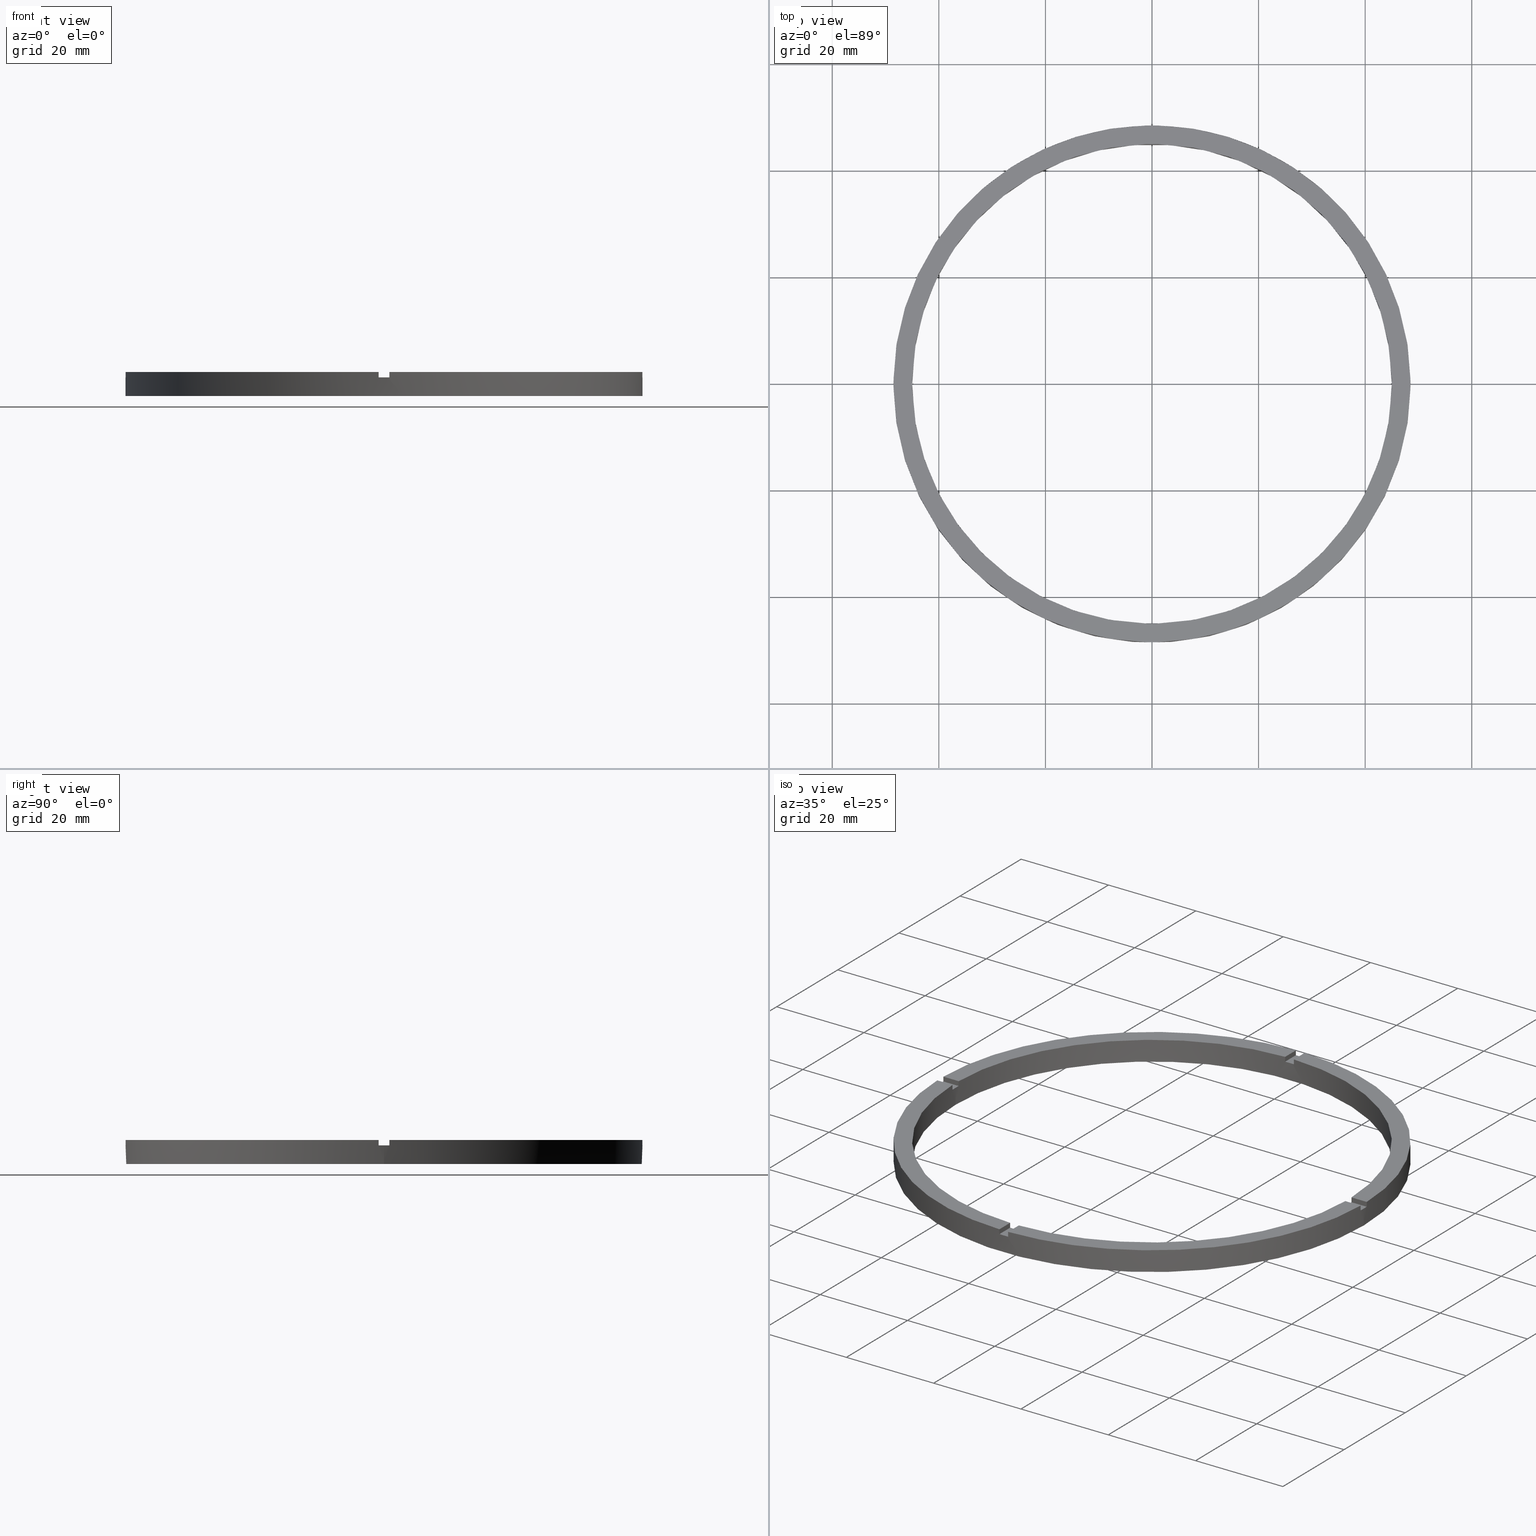
[diagram: canonical four-view strip — front | top / right | iso, engineering-drawing reading convention]
A machine part, canonical four-view strip (front | top / right | iso — engineering-drawing reading convention). The complete STEP part file that produces these views, byte-faithful:
ISO-10303-21;
HEADER;
FILE_DESCRIPTION (( 'STEP AP203' ),
    '1' );
FILE_NAME ('514198.step',
    '2024-12-26T02:47:10',
    ( 'MSI' ),
    ( '' ),
    'SwSTEP 2.0',
    'SolidWorks 2020',
    '' );
FILE_SCHEMA (( 'CONFIG_CONTROL_DESIGN' ));
ENDSEC;

DATA;
#1 = ORIENTED_EDGE ( 'NONE', *, *, #285, .F. ) ;
#2 = EDGE_CURVE ( 'NONE', #270, #714, #193, .T. ) ;
#3 = ORIENTED_EDGE ( 'NONE', *, *, #677, .F. ) ;
#4 = FACE_OUTER_BOUND ( 'NONE', #158, .T. ) ;
#5 = ORIENTED_EDGE ( 'NONE', *, *, #331, .F. ) ;
#6 = CARTESIAN_POINT ( 'NONE',  ( 0.9999999999999733546, 44.98888751680797071, 3.499999999999999556 ) ) ;
#7 = LINE ( 'NONE', #86, #260 ) ;
#8 = ORIENTED_EDGE ( 'NONE', *, *, #366, .T. ) ;
#9 = FACE_OUTER_BOUND ( 'NONE', #173, .T. ) ;
#10 = ORIENTED_EDGE ( 'NONE', *, *, #252, .F. ) ;
#11 = EDGE_CURVE ( 'NONE', #218, #708, #175, .T. ) ;
#12 = ORIENTED_EDGE ( 'NONE', *, *, #117, .T. ) ;
#13 = CARTESIAN_POINT ( 'NONE',  ( 0.9999999999998423483, -44.98888751680797782, 4.500000000000000000 ) ) ;
#14 = ORIENTED_EDGE ( 'NONE', *, *, #104, .F. ) ;
#15 = DIRECTION ( 'NONE',  ( 1.000000000000000000, 0.000000000000000000, 0.000000000000000000 ) ) ;
#16 = ORIENTED_EDGE ( 'NONE', *, *, #375, .T. ) ;
#17 = COORDINATED_UNIVERSAL_TIME_OFFSET ( 8, 0, .AHEAD. ) ;
#18 = ORIENTED_EDGE ( 'NONE', *, *, #604, .F. ) ;
#19 = DIRECTION ( 'NONE',  ( -1.951563910473907735E-16, 1.000000000000000000, 0.000000000000000000 ) ) ;
#20 = ADVANCED_FACE ( 'NONE', ( #457 ), #384, .T. ) ;
#21 = EDGE_CURVE ( 'NONE', #489, #519, #469, .T. ) ;
#22 = ORIENTED_EDGE ( 'NONE', *, *, #499, .F. ) ;
#23 = ORIENTED_EDGE ( 'NONE', *, *, #122, .T. ) ;
#24 = DIRECTION ( 'NONE',  ( 1.000000000000000000, 0.000000000000000000, 0.000000000000000000 ) ) ;
#25 = AXIS2_PLACEMENT_3D ( 'NONE', #666, #672, #750 ) ;
#26 = LOCAL_TIME ( 10, 47, 10.00000000000000000, #17 ) ;
#27 = DATE_AND_TIME ( #549, #26 ) ;
#28 = ADVANCED_FACE ( 'NONE', ( #464 ), #216, .T. ) ;
#29 = DIRECTION ( 'NONE',  ( -1.000000000000000000, -6.505213034913025371E-17, -0.000000000000000000 ) ) ;
#30 = VERTEX_POINT ( 'NONE', #587 ) ;
#31 = CC_DESIGN_APPROVAL ( #355, ( #73 ) ) ;
#32 = PRODUCT_DEFINITION_SHAPE ( 'NONE', 'NONE',  #107 ) ;
#33 = CARTESIAN_POINT ( 'NONE',  ( 0.000000000000000000, 0.000000000000000000, 3.499999999999999556 ) ) ;
#34 = DIRECTION ( 'NONE',  ( 1.000000000000000000, 0.000000000000000000, 0.000000000000000000 ) ) ;
#35 = CARTESIAN_POINT ( 'NONE',  ( 0.000000000000000000, 0.000000000000000000, 4.500000000000000000 ) ) ;
#36 = EDGE_CURVE ( 'NONE', #232, #471, #481, .T. ) ;
#37 = DATE_AND_TIME ( #303, #329 ) ;
#38 = VERTEX_POINT ( 'NONE', #395 ) ;
#39 = APPROVAL_PERSON_ORGANIZATION ( #556, #491, #379 ) ;
#40 = VERTEX_POINT ( 'NONE', #548 ) ;
#41 = PERSON_AND_ORGANIZATION_ROLE ( 'design_owner' ) ;
#42 = APPROVAL_PERSON_ORGANIZATION ( #576, #775, #347 ) ;
#43 = AXIS2_PLACEMENT_3D ( 'NONE', #631, #733, #34 ) ;
#44 = EDGE_CURVE ( 'NONE', #721, #737, #728, .T. ) ;
#45 = CARTESIAN_POINT ( 'NONE',  ( 0.000000000000000000, 0.000000000000000000, 0.000000000000000000 ) ) ;
#46 = APPROVAL_DATE_TIME ( #566, #491 ) ;
#47 = DIRECTION ( 'NONE',  ( 0.000000000000000000, 0.000000000000000000, 1.000000000000000000 ) ) ;
#48 = SHAPE_DEFINITION_REPRESENTATION ( #32, #579 ) ;
#49 = CARTESIAN_POINT ( 'NONE',  ( 48.48968962573384545, 0.9999999999998445688, 4.500000000000000000 ) ) ;
#50 = CARTESIAN_POINT ( 'NONE',  ( 0.000000000000000000, 0.000000000000000000, 4.500000000000000000 ) ) ;
#51 = EDGE_CURVE ( 'NONE', #692, #552, #722, .T. ) ;
#52 = CARTESIAN_POINT ( 'NONE',  ( -48.50000000000000000, 0.000000000000000000, 4.500000000000000000 ) ) ;
#53 = CARTESIAN_POINT ( 'NONE',  ( -1.000000000000158540, -38.50000000000017764, 3.499999999999999556 ) ) ;
#54 = CARTESIAN_POINT ( 'NONE',  ( 0.000000000000000000, 0.000000000000000000, 4.500000000000000000 ) ) ;
#55 = EDGE_CURVE ( 'NONE', #422, #425, #478, .T. ) ;
#56 = EDGE_CURVE ( 'NONE', #519, #201, #219, .T. ) ;
#57 = PLANE ( 'NONE',  #670 ) ;
#58 = CARTESIAN_POINT ( 'NONE',  ( 0.000000000000000000, 0.000000000000000000, 4.500000000000000000 ) ) ;
#59 = CARTESIAN_POINT ( 'NONE',  ( 44.98888751680797071, -1.000000000000155875, 4.500000000000000000 ) ) ;
#60 = DIRECTION ( 'NONE',  ( 1.301042606982605074E-16, -1.000000000000000000, 0.000000000000000000 ) ) ;
#61 = CARTESIAN_POINT ( 'NONE',  ( 38.49999999999999289, 0.9999999999998439026, 3.499999999999999556 ) ) ;
#62 = DIRECTION ( 'NONE',  ( 1.000000000000000000, 0.000000000000000000, 0.000000000000000000 ) ) ;
#63 = DIRECTION ( 'NONE',  ( 0.000000000000000000, 0.000000000000000000, 1.000000000000000000 ) ) ;
#64 = CARTESIAN_POINT ( 'NONE',  ( -44.98888751680797071, 0.9999999999999699130, 4.500000000000000000 ) ) ;
#65 = EDGE_CURVE ( 'NONE', #708, #552, #473, .T. ) ;
#66 = CARTESIAN_POINT ( 'NONE',  ( -44.98888751680797071, -1.000000000000030198, 4.500000000000000000 ) ) ;
#67 = CALENDAR_DATE ( 2024, 26, 12 ) ;
#68 = COORDINATED_UNIVERSAL_TIME_OFFSET ( 8, 0, .AHEAD. ) ;
#69 = AXIS2_PLACEMENT_3D ( 'NONE', #142, #299, #760 ) ;
#70 = APPROVAL_PERSON_ORGANIZATION ( #328, #355, #152 ) ;
#71 = DIRECTION ( 'NONE',  ( 0.000000000000000000, -0.000000000000000000, 1.000000000000000000 ) ) ;
#72 = LOCAL_TIME ( 10, 47, 10.00000000000000000, #68 ) ;
#73 = PRODUCT_DEFINITION_FORMATION_WITH_SPECIFIED_SOURCE ( '�κ�', '', #75, .NOT_KNOWN. ) ;
#74 = CARTESIAN_POINT ( 'NONE',  ( 48.48968962573384545, 0.9999999999998445688, 4.500000000000000000 ) ) ;
#75 = PRODUCT ( '514198', '514198', '', ( #509 ) ) ;
#76 = PLANE ( 'NONE',  #643 ) ;
#77 = FACE_OUTER_BOUND ( 'NONE', #265, .T. ) ;
#78 = FACE_OUTER_BOUND ( 'NONE', #718, .T. ) ;
#79 = VECTOR ( 'NONE', #352, 1000.000000000000000 ) ;
#80 = DIRECTION ( 'NONE',  ( -0.000000000000000000, -0.000000000000000000, -1.000000000000000000 ) ) ;
#81 = LINE ( 'NONE', #235, #614 ) ;
#82 = AXIS2_PLACEMENT_3D ( 'NONE', #33, #387, #738 ) ;
#83 = CIRCLE ( 'NONE', #396, 45.00000000000000711 ) ;
#84 = LINE ( 'NONE', #291, #357 ) ;
#85 = FACE_OUTER_BOUND ( 'NONE', #190, .T. ) ;
#86 = CARTESIAN_POINT ( 'NONE',  ( 0.9999999999998414602, -38.50000000000017764, 3.499999999999999556 ) ) ;
#87 = LINE ( 'NONE', #397, #349 ) ;
#88 = LINE ( 'NONE', #477, #597 ) ;
#89 = VECTOR ( 'NONE', #585, 1000.000000000000000 ) ;
#90 = LINE ( 'NONE', #455, #602 ) ;
#91 = AXIS2_PLACEMENT_3D ( 'NONE', #542, #388, #610 ) ;
#92 = LINE ( 'NONE', #394, #624 ) ;
#93 = CARTESIAN_POINT ( 'NONE',  ( 0.9999999999998414602, -38.50000000000017764, 3.499999999999999556 ) ) ;
#94 = CYLINDRICAL_SURFACE ( 'NONE', #681, 45.00000000000000711 ) ;
#95 = AXIS2_PLACEMENT_3D ( 'NONE', #582, #647, #772 ) ;
#96 = ADVANCED_FACE ( 'NONE', ( #210 ), #592, .F. ) ;
#97 = VECTOR ( 'NONE', #108, 1000.000000000000000 ) ;
#98 = LINE ( 'NONE', #53, #97 ) ;
#99 = CIRCLE ( 'NONE', #386, 48.50000000000000000 ) ;
#100 = CIRCLE ( 'NONE', #662, 45.00000000000000711 ) ;
#101 = AXIS2_PLACEMENT_3D ( 'NONE', #648, #344, #527 ) ;
#102 = DIRECTION ( 'NONE',  ( -0.000000000000000000, -0.000000000000000000, -1.000000000000000000 ) ) ;
#103 = CARTESIAN_POINT ( 'NONE',  ( -1.000000000000157652, -44.98888751680797071, 4.500000000000000000 ) ) ;
#104 = EDGE_CURVE ( 'NONE', #215, #225, #213, .T. ) ;
#105 = CARTESIAN_POINT ( 'NONE',  ( -48.50000000000000000, 0.000000000000000000, 3.499999999999999556 ) ) ;
#106 = CARTESIAN_POINT ( 'NONE',  ( -1.000000000000158540, -38.50000000000017764, 4.500000000000000000 ) ) ;
#107 = PRODUCT_DEFINITION ( 'δ֪', '', #73, #419 ) ;
#108 = DIRECTION ( 'NONE',  ( 1.301042606982605074E-16, -1.000000000000000000, 0.000000000000000000 ) ) ;
#109 = DIRECTION ( 'NONE',  ( -1.000000000000000000, -6.505213034913025371E-17, -0.000000000000000000 ) ) ;
#110 = EDGE_CURVE ( 'NONE', #489, #454, #757, .T. ) ;
#111 = CARTESIAN_POINT ( 'NONE',  ( 0.000000000000000000, 0.000000000000000000, 3.499999999999999556 ) ) ;
#112 = DIRECTION ( 'NONE',  ( 0.000000000000000000, -0.000000000000000000, 1.000000000000000000 ) ) ;
#113 = DIRECTION ( 'NONE',  ( 0.000000000000000000, 0.000000000000000000, 1.000000000000000000 ) ) ;
#114 = EDGE_CURVE ( 'NONE', #519, #686, #264, .T. ) ;
#115 = CARTESIAN_POINT ( 'NONE',  ( 0.000000000000000000, 0.000000000000000000, 4.500000000000000000 ) ) ;
#116 = PERSON_AND_ORGANIZATION_ROLE ( 'classification_officer' ) ;
#117 = EDGE_CURVE ( 'NONE', #721, #170, #244, .T. ) ;
#118 = CARTESIAN_POINT ( 'NONE',  ( 44.98888751680797071, -1.000000000000155875, 4.500000000000000000 ) ) ;
#119 = PLANE ( 'NONE',  #401 ) ;
#120 = DATE_TIME_ROLE ( 'classification_date' ) ;
#121 = CARTESIAN_POINT ( 'NONE',  ( 0.000000000000000000, 0.000000000000000000, 0.000000000000000000 ) ) ;
#122 = EDGE_CURVE ( 'NONE', #676, #30, #269, .T. ) ;
#123 = DIRECTION ( 'NONE',  ( 0.000000000000000000, 0.000000000000000000, 1.000000000000000000 ) ) ;
#124 = EDGE_CURVE ( 'NONE', #170, #225, #751, .T. ) ;
#125 = PERSON_AND_ORGANIZATION_ROLE ( 'design_supplier' ) ;
#126 = DIRECTION ( 'NONE',  ( 1.000000000000000000, 0.000000000000000000, -0.000000000000000000 ) ) ;
#127 = AXIS2_PLACEMENT_3D ( 'NONE', #45, #724, #24 ) ;
#128 = EDGE_CURVE ( 'NONE', #440, #30, #758, .T. ) ;
#129 = DIRECTION ( 'NONE',  ( 0.000000000000000000, 0.000000000000000000, 1.000000000000000000 ) ) ;
#130 = ADVANCED_FACE ( 'NONE', ( #502 ), #256, .F. ) ;
#131 = EDGE_CURVE ( 'NONE', #40, #197, #508, .T. ) ;
#132 = ADVANCED_FACE ( 'NONE', ( #242 ), #141, .T. ) ;
#133 =( NAMED_UNIT ( * ) PLANE_ANGLE_UNIT ( ) SI_UNIT ( $, .RADIAN. ) );
#134 = DIRECTION ( 'NONE',  ( 0.000000000000000000, 0.000000000000000000, 1.000000000000000000 ) ) ;
#135 = DIRECTION ( 'NONE',  ( 0.000000000000000000, 0.000000000000000000, 1.000000000000000000 ) ) ;
#136 = CARTESIAN_POINT ( 'NONE',  ( -38.50000000000018474, -1.000000000000029088, 4.500000000000000000 ) ) ;
#137 = AXIS2_PLACEMENT_3D ( 'NONE', #390, #580, #766 ) ;
#138 = CARTESIAN_POINT ( 'NONE',  ( -38.50000000000018474, -1.000000000000029088, 3.499999999999999556 ) ) ;
#139 = CARTESIAN_POINT ( 'NONE',  ( 45.00000000000000711, 5.510910596163090344E-15, 0.000000000000000000 ) ) ;
#140 = ADVANCED_FACE ( 'NONE', ( #4 ), #768, .T. ) ;
#141 = PLANE ( 'NONE',  #746 ) ;
#142 = CARTESIAN_POINT ( 'NONE',  ( 0.000000000000000000, 0.000000000000000000, 4.500000000000000000 ) ) ;
#143 = AXIS2_PLACEMENT_3D ( 'NONE', #144, #468, #451 ) ;
#144 = CARTESIAN_POINT ( 'NONE',  ( 0.000000000000000000, 0.000000000000000000, 4.500000000000000000 ) ) ;
#145 = CARTESIAN_POINT ( 'NONE',  ( -48.48968962573384545, -1.000000000000031086, 3.499999999999999556 ) ) ;
#146 = ADVANCED_FACE ( 'NONE', ( #762 ), #551, .T. ) ;
#147 = CARTESIAN_POINT ( 'NONE',  ( 38.49999999999999289, 0.9999999999998439026, 3.499999999999999556 ) ) ;
#148 = CARTESIAN_POINT ( 'NONE',  ( 0.000000000000000000, 0.000000000000000000, 4.500000000000000000 ) ) ;
#149 = EDGE_CURVE ( 'NONE', #454, #686, #250, .T. ) ;
#150 = PERSON ( 'δָ��', 'δָ��', 'δָ��', ('δָ��'), ('δָ��'), ('δָ��') ) ;
#151 = EDGE_CURVE ( 'NONE', #38, #721, #248, .T. ) ;
#152 = APPROVAL_ROLE ( '' ) ;
#153 = PERSON_AND_ORGANIZATION_ROLE ( 'creator' ) ;
#154 = CARTESIAN_POINT ( 'NONE',  ( -1.000000000000026645, 38.50000000000000000, 3.499999999999999556 ) ) ;
#155 = EDGE_CURVE ( 'NONE', #515, #163, #536, .T. ) ;
#156 = CARTESIAN_POINT ( 'NONE',  ( -45.00000000000000711, 0.000000000000000000, 0.000000000000000000 ) ) ;
#157 = VERTEX_POINT ( 'NONE', #295 ) ;
#158 = EDGE_LOOP ( 'NONE', ( #10, #205, #739, #177, #522, #466, #3, #693, #682, #782, #459, #712 ) ) ;
#159 = DIRECTION ( 'NONE',  ( -0.000000000000000000, 0.000000000000000000, 1.000000000000000000 ) ) ;
#160 = EDGE_CURVE ( 'NONE', #692, #272, #510, .T. ) ;
#161 = EDGE_CURVE ( 'NONE', #554, #425, #516, .T. ) ;
#162 = CARTESIAN_POINT ( 'NONE',  ( -1.000000000000157652, -44.98888751680797071, 3.499999999999999556 ) ) ;
#163 = VERTEX_POINT ( 'NONE', #156 ) ;
#164 = EDGE_LOOP ( 'NONE', ( #486, #207, #539, #564, #734, #506, #476, #501, #745, #228, #497, #229 ) ) ;
#165 = AXIS2_PLACEMENT_3D ( 'NONE', #196, #418, #659 ) ;
#166 = CARTESIAN_POINT ( 'NONE',  ( 48.48968962573384545, -1.000000000000155431, 3.499999999999999556 ) ) ;
#167 = ORIENTED_EDGE ( 'NONE', *, *, #499, .T. ) ;
#168 = CARTESIAN_POINT ( 'NONE',  ( -44.98888751680797071, 0.9999999999999699130, 3.499999999999999556 ) ) ;
#169 = ORIENTED_EDGE ( 'NONE', *, *, #21, .F. ) ;
#170 = VERTEX_POINT ( 'NONE', #145 ) ;
#171 = CARTESIAN_POINT ( 'NONE',  ( 48.48968962573384545, -1.000000000000155431, 4.500000000000000000 ) ) ;
#172 = CARTESIAN_POINT ( 'NONE',  ( -44.98888751680797071, 0.9999999999999699130, 4.500000000000000000 ) ) ;
#173 = EDGE_LOOP ( 'NONE', ( #280, #195, #687, #182 ) ) ;
#174 = AXIS2_PLACEMENT_3D ( 'NONE', #658, #717, #700 ) ;
#175 = LINE ( 'NONE', #262, #179 ) ;
#176 = VERTEX_POINT ( 'NONE', #363 ) ;
#177 = ORIENTED_EDGE ( 'NONE', *, *, #44, .F. ) ;
#178 = ORIENTED_EDGE ( 'NONE', *, *, #677, .T. ) ;
#179 = VECTOR ( 'NONE', #571, 1000.000000000000000 ) ;
#180 = ORIENTED_EDGE ( 'NONE', *, *, #21, .T. ) ;
#181 = ORIENTED_EDGE ( 'NONE', *, *, #636, .T. ) ;
#182 = ORIENTED_EDGE ( 'NONE', *, *, #664, .T. ) ;
#183 = ADVANCED_FACE ( 'NONE', ( #773 ), #241, .F. ) ;
#184 = ORIENTED_EDGE ( 'NONE', *, *, #572, .F. ) ;
#185 = DIRECTION ( 'NONE',  ( 0.000000000000000000, 0.000000000000000000, 1.000000000000000000 ) ) ;
#186 = ORIENTED_EDGE ( 'NONE', *, *, #636, .F. ) ;
#187 = EDGE_LOOP ( 'NONE', ( #1, #246, #261, #691 ) ) ;
#188 = ORIENTED_EDGE ( 'NONE', *, *, #155, .T. ) ;
#189 = ORIENTED_EDGE ( 'NONE', *, *, #11, .T. ) ;
#190 = EDGE_LOOP ( 'NONE', ( #528, #547, #169, #208 ) ) ;
#191 = APPLICATION_CONTEXT ( 'configuration controlled 3d designs of mechanical parts and assemblies' ) ;
#192 = EDGE_CURVE ( 'NONE', #38, #561, #532, .T. ) ;
#193 = LINE ( 'NONE', #172, #706 ) ;
#194 = ORIENTED_EDGE ( 'NONE', *, *, #694, .F. ) ;
#195 = ORIENTED_EDGE ( 'NONE', *, *, #55, .F. ) ;
#196 = CARTESIAN_POINT ( 'NONE',  ( 38.49999999999999289, -1.000000000000156097, 3.499999999999999556 ) ) ;
#197 = VERTEX_POINT ( 'NONE', #603 ) ;
#198 = VECTOR ( 'NONE', #29, 1000.000000000000000 ) ;
#199 = EDGE_LOOP ( 'NONE', ( #284, #441, #268, #505, #736, #231, #697, #282, #512, #220, #701, #705 ) ) ;
#200 = ORIENTED_EDGE ( 'NONE', *, *, #599, .F. ) ;
#201 = VERTEX_POINT ( 'NONE', #433 ) ;
#202 = DIRECTION ( 'NONE',  ( 1.000000000000000000, 1.951563910473907735E-16, -0.000000000000000000 ) ) ;
#203 = EDGE_CURVE ( 'NONE', #163, #515, #534, .T. ) ;
#204 = ORIENTED_EDGE ( 'NONE', *, *, #11, .F. ) ;
#205 = ORIENTED_EDGE ( 'NONE', *, *, #623, .T. ) ;
#206 = ORIENTED_EDGE ( 'NONE', *, *, #131, .T. ) ;
#207 = ORIENTED_EDGE ( 'NONE', *, *, #599, .T. ) ;
#208 = ORIENTED_EDGE ( 'NONE', *, *, #296, .T. ) ;
#209 = DIRECTION ( 'NONE',  ( 1.000000000000000000, 6.505213034913025371E-17, 0.000000000000000000 ) ) ;
#210 = FACE_OUTER_BOUND ( 'NONE', #699, .T. ) ;
#211 = EDGE_LOOP ( 'NONE', ( #276, #683, #292, #200, #186, #702 ) ) ;
#212 = DIRECTION ( 'NONE',  ( 0.000000000000000000, 0.000000000000000000, 1.000000000000000000 ) ) ;
#213 = LINE ( 'NONE', #678, #725 ) ;
#214 = DIRECTION ( 'NONE',  ( -0.000000000000000000, -1.000000000000000000, -0.000000000000000000 ) ) ;
#215 = VERTEX_POINT ( 'NONE', #66 ) ;
#216 = CYLINDRICAL_SURFACE ( 'NONE', #281, 48.50000000000000000 ) ;
#217 = DIRECTION ( 'NONE',  ( 1.000000000000000000, 0.000000000000000000, -0.000000000000000000 ) ) ;
#218 = VERTEX_POINT ( 'NONE', #6 ) ;
#219 = CIRCLE ( 'NONE', #393, 45.00000000000000711 ) ;
#220 = ORIENTED_EDGE ( 'NONE', *, *, #117, .F. ) ;
#221 = PLANE ( 'NONE',  #351 ) ;
#222 = VECTOR ( 'NONE', #635, 1000.000000000000000 ) ;
#223 = AXIS2_PLACEMENT_3D ( 'NONE', #577, #735, #247 ) ;
#224 = ORIENTED_EDGE ( 'NONE', *, *, #110, .F. ) ;
#225 = VERTEX_POINT ( 'NONE', #318 ) ;
#226 = DIRECTION ( 'NONE',  ( 1.000000000000000000, 0.000000000000000000, 0.000000000000000000 ) ) ;
#227 = ORIENTED_EDGE ( 'NONE', *, *, #423, .F. ) ;
#228 = ORIENTED_EDGE ( 'NONE', *, *, #331, .T. ) ;
#229 = ORIENTED_EDGE ( 'NONE', *, *, #155, .F. ) ;
#230 = DIRECTION ( 'NONE',  ( 0.000000000000000000, 0.000000000000000000, 1.000000000000000000 ) ) ;
#231 = ORIENTED_EDGE ( 'NONE', *, *, #131, .F. ) ;
#232 = VERTEX_POINT ( 'NONE', #162 ) ;
#233 = ORIENTED_EDGE ( 'NONE', *, *, #604, .T. ) ;
#234 = CARTESIAN_POINT ( 'NONE',  ( 0.000000000000000000, 0.000000000000000000, 4.500000000000000000 ) ) ;
#235 = CARTESIAN_POINT ( 'NONE',  ( -48.48968962573384545, -1.000000000000031086, 4.500000000000000000 ) ) ;
#236 = DIRECTION ( 'NONE',  ( 0.000000000000000000, 0.000000000000000000, 1.000000000000000000 ) ) ;
#237 = AXIS2_PLACEMENT_3D ( 'NONE', #259, #618, #653 ) ;
#238 = FACE_OUTER_BOUND ( 'NONE', #729, .T. ) ;
#239 = CARTESIAN_POINT ( 'NONE',  ( 0.9999999999999733546, 38.50000000000000000, 4.500000000000000000 ) ) ;
#240 = VECTOR ( 'NONE', #544, 1000.000000000000000 ) ;
#241 = PLANE ( 'NONE',  #382 ) ;
#242 = FACE_OUTER_BOUND ( 'NONE', #253, .T. ) ;
#243 = DIRECTION ( 'NONE',  ( -0.000000000000000000, -0.000000000000000000, -1.000000000000000000 ) ) ;
#244 = CIRCLE ( 'NONE', #661, 48.50000000000000000 ) ;
#245 = ORIENTED_EDGE ( 'NONE', *, *, #203, .F. ) ;
#246 = ORIENTED_EDGE ( 'NONE', *, *, #2, .T. ) ;
#247 = DIRECTION ( 'NONE',  ( 1.000000000000000000, 0.000000000000000000, -0.000000000000000000 ) ) ;
#248 = CIRCLE ( 'NONE', #650, 48.50000000000000000 ) ;
#249 = AXIS2_PLACEMENT_3D ( 'NONE', #756, #646, #60 ) ;
#250 = LINE ( 'NONE', #61, #759 ) ;
#251 = DIRECTION ( 'NONE',  ( 0.000000000000000000, 0.000000000000000000, 1.000000000000000000 ) ) ;
#252 = EDGE_CURVE ( 'NONE', #778, #454, #513, .T. ) ;
#253 = EDGE_LOOP ( 'NONE', ( #450, #703, #18, #719 ) ) ;
#254 = VECTOR ( 'NONE', #102, 1000.000000000000000 ) ;
#255 = ORIENTED_EDGE ( 'NONE', *, *, #435, .F. ) ;
#256 = CYLINDRICAL_SURFACE ( 'NONE', #629, 45.00000000000000711 ) ;
#257 = CIRCLE ( 'NONE', #507, 48.50000000000000000 ) ;
#258 = ORIENTED_EDGE ( 'NONE', *, *, #293, .F. ) ;
#259 = CARTESIAN_POINT ( 'NONE',  ( 0.000000000000000000, 0.000000000000000000, 4.500000000000000000 ) ) ;
#260 = VECTOR ( 'NONE', #381, 1000.000000000000000 ) ;
#261 = ORIENTED_EDGE ( 'NONE', *, *, #435, .T. ) ;
#262 = CARTESIAN_POINT ( 'NONE',  ( 0.9999999999999733546, 38.50000000000000000, 3.499999999999999556 ) ) ;
#263 = VECTOR ( 'NONE', #377, 1000.000000000000000 ) ;
#264 = LINE ( 'NONE', #741, #254 ) ;
#265 = EDGE_LOOP ( 'NONE', ( #184, #16, #23, #458 ) ) ;
#266 = ADVANCED_FACE ( 'NONE', ( #9 ), #627, .T. ) ;
#267 = LINE ( 'NONE', #275, #500 ) ;
#268 = ORIENTED_EDGE ( 'NONE', *, *, #327, .T. ) ;
#269 = LINE ( 'NONE', #106, #764 ) ;
#270 = VERTEX_POINT ( 'NONE', #168 ) ;
#271 = VECTOR ( 'NONE', #113, 1000.000000000000000 ) ;
#272 = VERTEX_POINT ( 'NONE', #707 ) ;
#273 = AXIS2_PLACEMENT_3D ( 'NONE', #755, #467, #780 ) ;
#274 = LINE ( 'NONE', #103, #526 ) ;
#275 = CARTESIAN_POINT ( 'NONE',  ( 0.9999999999998427924, -48.48968962573384545, 4.500000000000000000 ) ) ;
#276 = ORIENTED_EDGE ( 'NONE', *, *, #494, .T. ) ;
#277 = FACE_OUTER_BOUND ( 'NONE', #187, .T. ) ;
#278 =( LENGTH_UNIT ( ) NAMED_UNIT ( * ) SI_UNIT ( .MILLI., .METRE. ) );
#279 = ADVANCED_FACE ( 'NONE', ( #277 ), #76, .F. ) ;
#280 = ORIENTED_EDGE ( 'NONE', *, *, #617, .F. ) ;
#281 = AXIS2_PLACEMENT_3D ( 'NONE', #35, #320, #412 ) ;
#282 = ORIENTED_EDGE ( 'NONE', *, *, #128, .F. ) ;
#283 = EDGE_LOOP ( 'NONE', ( #543, #167, #696, #189 ) ) ;
#284 = ORIENTED_EDGE ( 'NONE', *, *, #623, .F. ) ;
#285 = EDGE_CURVE ( 'NONE', #270, #38, #776, .T. ) ;
#286 = DIRECTION ( 'NONE',  ( -1.000000000000000000, 0.000000000000000000, 0.000000000000000000 ) ) ;
#287 = AXIS2_PLACEMENT_3D ( 'NONE', #640, #685, #690 ) ;
#288 = CALENDAR_DATE ( 2024, 26, 12 ) ;
#289 = EDGE_LOOP ( 'NONE', ( #204, #732, #541, #443 ) ) ;
#290 = ORIENTED_EDGE ( 'NONE', *, *, #285, .T. ) ;
#291 = CARTESIAN_POINT ( 'NONE',  ( 0.9999999999999733546, 48.48968962573384545, 4.500000000000000000 ) ) ;
#292 = ORIENTED_EDGE ( 'NONE', *, *, #149, .T. ) ;
#293 = EDGE_CURVE ( 'NONE', #537, #737, #257, .T. ) ;
#294 = CARTESIAN_POINT ( 'NONE',  ( -1.000000000000026645, 44.98888751680797071, 4.500000000000000000 ) ) ;
#295 = CARTESIAN_POINT ( 'NONE',  ( -1.000000000000026645, 44.98888751680797071, 3.499999999999999556 ) ) ;
#296 = EDGE_CURVE ( 'NONE', #489, #689, #518, .T. ) ;
#297 = DIRECTION ( 'NONE',  ( -0.000000000000000000, -0.000000000000000000, -1.000000000000000000 ) ) ;
#298 = CC_DESIGN_DATE_AND_TIME_ASSIGNMENT ( #27, #120, ( #333 ) ) ;
#299 = DIRECTION ( 'NONE',  ( 0.000000000000000000, 0.000000000000000000, 1.000000000000000000 ) ) ;
#300 = CARTESIAN_POINT ( 'NONE',  ( -1.000000000000026645, 48.48968962573384545, 4.500000000000000000 ) ) ;
#301 = PERSON_AND_ORGANIZATION ( #150, #319 ) ;
#302 = DIRECTION ( 'NONE',  ( -6.505213034913025371E-17, 1.000000000000000000, 0.000000000000000000 ) ) ;
#303 = CALENDAR_DATE ( 2024, 26, 12 ) ;
#304 = EDGE_LOOP ( 'NONE', ( #525, #188 ) ) ;
#305 = CARTESIAN_POINT ( 'NONE',  ( 0.000000000000000000, 0.000000000000000000, 3.499999999999999556 ) ) ;
#306 = CARTESIAN_POINT ( 'NONE',  ( 0.000000000000000000, 0.000000000000000000, 3.499999999999999556 ) ) ;
#307 = DIRECTION ( 'NONE',  ( 1.000000000000000000, 0.000000000000000000, 0.000000000000000000 ) ) ;
#308 = DIRECTION ( 'NONE',  ( -0.000000000000000000, -0.000000000000000000, -1.000000000000000000 ) ) ;
#309 = PERSON_AND_ORGANIZATION ( #150, #319 ) ;
#310 = PLANE ( 'NONE',  #249 ) ;
#311 = DIRECTION ( 'NONE',  ( 0.000000000000000000, 0.000000000000000000, -1.000000000000000000 ) ) ;
#312 = AXIS2_PLACEMENT_3D ( 'NONE', #431, #752, #62 ) ;
#313 = PERSON_AND_ORGANIZATION_ROLE ( 'creator' ) ;
#314 = CARTESIAN_POINT ( 'NONE',  ( -48.48968962573384545, -1.000000000000031086, 4.500000000000000000 ) ) ;
#315 = DIRECTION ( 'NONE',  ( 1.000000000000000000, 0.000000000000000000, 0.000000000000000000 ) ) ;
#316 = PERSON_AND_ORGANIZATION ( #150, #319 ) ;
#317 = APPROVAL_STATUS ( 'not_yet_approved' ) ;
#318 = CARTESIAN_POINT ( 'NONE',  ( -44.98888751680797071, -1.000000000000030198, 3.499999999999999556 ) ) ;
#319 = ORGANIZATION ( 'δָ��', 'δָ��', '' ) ;
#320 = DIRECTION ( 'NONE',  ( -0.000000000000000000, -0.000000000000000000, -1.000000000000000000 ) ) ;
#321 = COORDINATED_UNIVERSAL_TIME_OFFSET ( 8, 0, .AHEAD. ) ;
#322 = CARTESIAN_POINT ( 'NONE',  ( 0.000000000000000000, 0.000000000000000000, 3.499999999999999556 ) ) ;
#323 = EDGE_CURVE ( 'NONE', #197, #471, #7, .T. ) ;
#324 = CARTESIAN_POINT ( 'NONE',  ( -38.50000000000018474, 0.9999999999999709122, 3.499999999999999556 ) ) ;
#325 = CALENDAR_DATE ( 2024, 26, 12 ) ;
#326 = DATE_AND_TIME ( #325, #72 ) ;
#327 = EDGE_CURVE ( 'NONE', #424, #726, #779, .T. ) ;
#328 = PERSON_AND_ORGANIZATION ( #150, #319 ) ;
#329 = LOCAL_TIME ( 10, 47, 10.00000000000000000, #330 ) ;
#330 = COORDINATED_UNIVERSAL_TIME_OFFSET ( 8, 0, .AHEAD. ) ;
#331 = EDGE_CURVE ( 'NONE', #270, #448, #754, .T. ) ;
#332 = CARTESIAN_POINT ( 'NONE',  ( -48.50000000000000000, 0.000000000000000000, 0.000000000000000000 ) ) ;
#333 = SECURITY_CLASSIFICATION ( '', '', #568 ) ;
#334 = ADVANCED_FACE ( 'NONE', ( #783 ), #730, .F. ) ;
#335 = ADVANCED_FACE ( 'NONE', ( #238 ), #383, .F. ) ;
#336 = CIRCLE ( 'NONE', #82, 45.00000000000000711 ) ;
#337 = EDGE_CURVE ( 'NONE', #215, #676, #523, .T. ) ;
#338 = DIRECTION ( 'NONE',  ( 1.000000000000000000, 1.301042606982605074E-16, 0.000000000000000000 ) ) ;
#339 = CIRCLE ( 'NONE', #25, 45.00000000000000711 ) ;
#340 = LINE ( 'NONE', #13, #354 ) ;
#341 = LINE ( 'NONE', #535, #89 ) ;
#342 = CIRCLE ( 'NONE', #273, 48.50000000000000000 ) ;
#343 = VECTOR ( 'NONE', #538, 1000.000000000000000 ) ;
#344 = DIRECTION ( 'NONE',  ( 1.951563910473907735E-16, -1.000000000000000000, 0.000000000000000000 ) ) ;
#345 = LINE ( 'NONE', #239, #369 ) ;
#346 = FACE_OUTER_BOUND ( 'NONE', #711, .T. ) ;
#348 = DIRECTION ( 'NONE',  ( 1.000000000000000000, 1.951563910473907735E-16, -0.000000000000000000 ) ) ;
#347 = APPROVAL_ROLE ( '' ) ;
#349 = VECTOR ( 'NONE', #209, 1000.000000000000000 ) ;
#350 = DIRECTION ( 'NONE',  ( -0.000000000000000000, -0.000000000000000000, -1.000000000000000000 ) ) ;
#351 = AXIS2_PLACEMENT_3D ( 'NONE', #147, #302, #364 ) ;
#352 = DIRECTION ( 'NONE',  ( -0.000000000000000000, -0.000000000000000000, -1.000000000000000000 ) ) ;
#353 = DIRECTION ( 'NONE',  ( -1.000000000000000000, 0.000000000000000000, 0.000000000000000000 ) ) ;
#354 = VECTOR ( 'NONE', #80, 1000.000000000000000 ) ;
#355 = APPROVAL ( #619, 'δָ��' ) ;
#356 = DIRECTION ( 'NONE',  ( 0.000000000000000000, 0.000000000000000000, 1.000000000000000000 ) ) ;
#357 = VECTOR ( 'NONE', #47, 1000.000000000000000 ) ;
#358 = FACE_OUTER_BOUND ( 'NONE', #164, .T. ) ;
#359 = DIRECTION ( 'NONE',  ( -0.000000000000000000, -0.000000000000000000, -1.000000000000000000 ) ) ;
#360 = CARTESIAN_POINT ( 'NONE',  ( 0.000000000000000000, 0.000000000000000000, 3.499999999999999556 ) ) ;
#361 = VECTOR ( 'NONE', #529, 1000.000000000000000 ) ;
#362 = DATE_TIME_ROLE ( 'creation_date' ) ;
#363 = CARTESIAN_POINT ( 'NONE',  ( 45.00000000000000711, 5.510910596163090344E-15, 3.499999999999999556 ) ) ;
#364 = DIRECTION ( 'NONE',  ( -1.000000000000000000, -6.505213034913025371E-17, 0.000000000000000000 ) ) ;
#365 = VECTOR ( 'NONE', #348, 1000.000000000000000 ) ;
#366 = EDGE_CURVE ( 'NONE', #176, #515, #498, .T. ) ;
#367 = FACE_OUTER_BOUND ( 'NONE', #546, .T. ) ;
#368 = DIRECTION ( 'NONE',  ( 0.000000000000000000, 0.000000000000000000, 1.000000000000000000 ) ) ;
#369 = VECTOR ( 'NONE', #399, 1000.000000000000000 ) ;
#370 = DIRECTION ( 'NONE',  ( -0.000000000000000000, -0.000000000000000000, -1.000000000000000000 ) ) ;
#371 = MANIFOLD_SOLID_BREP ( '�г�-����1', #723 ) ;
#372 = AXIS2_PLACEMENT_3D ( 'NONE', #93, #338, #743 ) ;
#373 = CARTESIAN_POINT ( 'NONE',  ( 48.48968962573384545, 0.9999999999998445688, 3.499999999999999556 ) ) ;
#374 = CARTESIAN_POINT ( 'NONE',  ( -1.000000000000157652, -44.98888751680797071, 4.500000000000000000 ) ) ;
#375 = EDGE_CURVE ( 'NONE', #232, #676, #274, .T. ) ;
#376 = DIRECTION ( 'NONE',  ( 1.000000000000000000, 0.000000000000000000, 0.000000000000000000 ) ) ;
#377 = DIRECTION ( 'NONE',  ( 0.000000000000000000, 0.000000000000000000, 1.000000000000000000 ) ) ;
#378 = EDGE_CURVE ( 'NONE', #472, #197, #267, .T. ) ;
#379 = APPROVAL_ROLE ( '' ) ;
#380 = AXIS2_PLACEMENT_3D ( 'NONE', #416, #406, #15 ) ;
#381 = DIRECTION ( 'NONE',  ( -1.301042606982605074E-16, 1.000000000000000000, -0.000000000000000000 ) ) ;
#382 = AXIS2_PLACEMENT_3D ( 'NONE', #389, #680, #311 ) ;
#383 = PLANE ( 'NONE',  #165 ) ;
#384 = PLANE ( 'NONE',  #223 ) ;
#385 = APPLICATION_PROTOCOL_DEFINITION ( 'international standard', 'config_control_design', 1994, #191 ) ;
#386 = AXIS2_PLACEMENT_3D ( 'NONE', #54, #400, #226 ) ;
#387 = DIRECTION ( 'NONE',  ( 0.000000000000000000, 0.000000000000000000, 1.000000000000000000 ) ) ;
#388 = DIRECTION ( 'NONE',  ( 0.000000000000000000, -0.000000000000000000, 1.000000000000000000 ) ) ;
#389 = CARTESIAN_POINT ( 'NONE',  ( 0.9999999999999733546, 38.50000000000000000, 3.499999999999999556 ) ) ;
#390 = CARTESIAN_POINT ( 'NONE',  ( 0.000000000000000000, 0.000000000000000000, 3.499999999999999556 ) ) ;
#391 = CARTESIAN_POINT ( 'NONE',  ( 44.98888751680797071, -1.000000000000155875, 3.499999999999999556 ) ) ;
#392 = CARTESIAN_POINT ( 'NONE',  ( 44.98888751680797782, 0.9999999999998441247, 3.499999999999999556 ) ) ;
#393 = AXIS2_PLACEMENT_3D ( 'NONE', #148, #402, #465 ) ;
#394 = CARTESIAN_POINT ( 'NONE',  ( -1.000000000000157208, -48.48968962573384545, 4.500000000000000000 ) ) ;
#395 = CARTESIAN_POINT ( 'NONE',  ( -48.48968962573384545, 0.9999999999999690248, 3.499999999999999556 ) ) ;
#396 = AXIS2_PLACEMENT_3D ( 'NONE', #744, #356, #644 ) ;
#397 = CARTESIAN_POINT ( 'NONE',  ( 38.49999999999999289, -1.000000000000156097, 4.500000000000000000 ) ) ;
#398 = DIRECTION ( 'NONE',  ( 1.000000000000000000, 0.000000000000000000, 0.000000000000000000 ) ) ;
#399 = DIRECTION ( 'NONE',  ( 0.000000000000000000, 1.000000000000000000, 0.000000000000000000 ) ) ;
#400 = DIRECTION ( 'NONE',  ( 0.000000000000000000, 0.000000000000000000, 1.000000000000000000 ) ) ;
#401 = AXIS2_PLACEMENT_3D ( 'NONE', #322, #159, #621 ) ;
#402 = DIRECTION ( 'NONE',  ( 0.000000000000000000, 0.000000000000000000, 1.000000000000000000 ) ) ;
#403 = CARTESIAN_POINT ( 'NONE',  ( 0.9999999999998423483, -44.98888751680797782, 3.499999999999999556 ) ) ;
#404 = CARTESIAN_POINT ( 'NONE',  ( -45.00000000000000711, 0.000000000000000000, 4.500000000000000000 ) ) ;
#405 = CARTESIAN_POINT ( 'NONE',  ( 0.000000000000000000, 0.000000000000000000, 4.500000000000000000 ) ) ;
#406 = DIRECTION ( 'NONE',  ( 0.000000000000000000, 0.000000000000000000, 1.000000000000000000 ) ) ;
#407 = EDGE_CURVE ( 'NONE', #218, #201, #530, .T. ) ;
#408 = CC_DESIGN_PERSON_AND_ORGANIZATION_ASSIGNMENT ( #553, #125, ( #73 ) ) ;
#409 = PLANE ( 'NONE',  #558 ) ;
#410 = DIRECTION ( 'NONE',  ( -1.000000000000000000, -1.951563910473907735E-16, 0.000000000000000000 ) ) ;
#411 =( GEOMETRIC_REPRESENTATION_CONTEXT ( 3 ) GLOBAL_UNCERTAINTY_ASSIGNED_CONTEXT ( ( #675 ) ) GLOBAL_UNIT_ASSIGNED_CONTEXT ( ( #278, #133, #630 ) ) REPRESENTATION_CONTEXT ( 'NONE', 'WORKASPACE' ) );
#412 = DIRECTION ( 'NONE',  ( -1.000000000000000000, 0.000000000000000000, 0.000000000000000000 ) ) ;
#413 = ADVANCED_FACE ( 'NONE', ( #367 ), #119, .T. ) ;
#414 = DIRECTION ( 'NONE',  ( -1.000000000000000000, -1.951563910473907735E-16, 0.000000000000000000 ) ) ;
#415 = DIRECTION ( 'NONE',  ( -1.000000000000000000, 0.000000000000000000, 0.000000000000000000 ) ) ;
#416 = CARTESIAN_POINT ( 'NONE',  ( 0.000000000000000000, 0.000000000000000000, 3.499999999999999556 ) ) ;
#417 = AXIS2_PLACEMENT_3D ( 'NONE', #50, #370, #747 ) ;
#418 = DIRECTION ( 'NONE',  ( 6.505213034913025371E-17, -1.000000000000000000, 0.000000000000000000 ) ) ;
#419 = DESIGN_CONTEXT ( 'detailed design', #514, 'design' ) ;
#420 = AXIS2_PLACEMENT_3D ( 'NONE', #578, #129, #573 ) ;
#421 = ADVANCED_FACE ( 'NONE', ( #622, #598 ), #409, .F. ) ;
#422 = VERTEX_POINT ( 'NONE', #704 ) ;
#423 = EDGE_CURVE ( 'NONE', #422, #471, #340, .T. ) ;
#424 = VERTEX_POINT ( 'NONE', #166 ) ;
#425 = VERTEX_POINT ( 'NONE', #59 ) ;
#426 = EDGE_CURVE ( 'NONE', #201, #689, #345, .T. ) ;
#427 = CARTESIAN_POINT ( 'NONE',  ( 48.48968962573384545, -1.000000000000155431, 4.500000000000000000 ) ) ;
#428 = ORIENTED_EDGE ( 'NONE', *, *, #160, .T. ) ;
#429 = ADVANCED_FACE ( 'NONE', ( #346 ), #769, .T. ) ;
#430 = ORIENTED_EDGE ( 'NONE', *, *, #160, .F. ) ;
#431 = CARTESIAN_POINT ( 'NONE',  ( 0.000000000000000000, 0.000000000000000000, 3.499999999999999556 ) ) ;
#432 = CC_DESIGN_PERSON_AND_ORGANIZATION_ASSIGNMENT ( #583, #153, ( #107 ) ) ;
#433 = CARTESIAN_POINT ( 'NONE',  ( 0.9999999999999733546, 44.98888751680797071, 4.500000000000000000 ) ) ;
#434 = ORIENTED_EDGE ( 'NONE', *, *, #149, .F. ) ;
#435 = EDGE_CURVE ( 'NONE', #714, #561, #625, .T. ) ;
#436 = ORIENTED_EDGE ( 'NONE', *, *, #632, .T. ) ;
#437 = ORIENTED_EDGE ( 'NONE', *, *, #151, .T. ) ;
#438 = ORIENTED_EDGE ( 'NONE', *, *, #545, .T. ) ;
#439 = CARTESIAN_POINT ( 'NONE',  ( -48.48968962573384545, 0.9999999999999690248, 4.500000000000000000 ) ) ;
#440 = VERTEX_POINT ( 'NONE', #314 ) ;
#441 = ORIENTED_EDGE ( 'NONE', *, *, #494, .F. ) ;
#442 = EDGE_CURVE ( 'NONE', #272, #714, #100, .T. ) ;
#443 = ORIENTED_EDGE ( 'NONE', *, *, #657, .F. ) ;
#444 = PRODUCT_RELATED_PRODUCT_CATEGORY ( 'detail', '', ( #75 ) ) ;
#445 = ORIENTED_EDGE ( 'NONE', *, *, #617, .T. ) ;
#446 = DIRECTION ( 'NONE',  ( 0.000000000000000000, 0.000000000000000000, 1.000000000000000000 ) ) ;
#447 = ORIENTED_EDGE ( 'NONE', *, *, #36, .F. ) ;
#448 = VERTEX_POINT ( 'NONE', #555 ) ;
#449 = CARTESIAN_POINT ( 'NONE',  ( 0.000000000000000000, 0.000000000000000000, 4.500000000000000000 ) ) ;
#450 = ORIENTED_EDGE ( 'NONE', *, *, #122, .F. ) ;
#451 = DIRECTION ( 'NONE',  ( 1.000000000000000000, 0.000000000000000000, 0.000000000000000000 ) ) ;
#452 = ORIENTED_EDGE ( 'NONE', *, *, #375, .F. ) ;
#453 = EDGE_CURVE ( 'NONE', #440, #170, #81, .T. ) ;
#454 = VERTEX_POINT ( 'NONE', #373 ) ;
#455 = CARTESIAN_POINT ( 'NONE',  ( 0.9999999999998414602, -38.50000000000017764, 4.500000000000000000 ) ) ;
#456 = ORIENTED_EDGE ( 'NONE', *, *, #572, .T. ) ;
#457 = FACE_OUTER_BOUND ( 'NONE', #474, .T. ) ;
#458 = ORIENTED_EDGE ( 'NONE', *, *, #638, .F. ) ;
#459 = ORIENTED_EDGE ( 'NONE', *, *, #296, .F. ) ;
#460 = ORIENTED_EDGE ( 'NONE', *, *, #323, .F. ) ;
#461 = EDGE_LOOP ( 'NONE', ( #720, #258 ) ) ;
#462 = ORIENTED_EDGE ( 'NONE', *, *, #715, .F. ) ;
#463 = ORIENTED_EDGE ( 'NONE', *, *, #124, .T. ) ;
#464 = FACE_OUTER_BOUND ( 'NONE', #199, .T. ) ;
#465 = DIRECTION ( 'NONE',  ( 1.000000000000000000, 0.000000000000000000, 0.000000000000000000 ) ) ;
#466 = ORIENTED_EDGE ( 'NONE', *, *, #192, .T. ) ;
#467 = DIRECTION ( 'NONE',  ( 0.000000000000000000, 0.000000000000000000, 1.000000000000000000 ) ) ;
#468 = DIRECTION ( 'NONE',  ( 0.000000000000000000, 0.000000000000000000, 1.000000000000000000 ) ) ;
#469 = LINE ( 'NONE', #727, #198 ) ;
#470 = EDGE_CURVE ( 'NONE', #218, #157, #608, .T. ) ;
#471 = VERTEX_POINT ( 'NONE', #403 ) ;
#472 = VERTEX_POINT ( 'NONE', #674 ) ;
#473 = CIRCLE ( 'NONE', #91, 48.50000000000000000 ) ;
#474 = EDGE_LOOP ( 'NONE', ( #430, #178, #255, #684 ) ) ;
#475 = VECTOR ( 'NONE', #639, 1000.000000000000000 ) ;
#476 = ORIENTED_EDGE ( 'NONE', *, *, #545, .F. ) ;
#477 = CARTESIAN_POINT ( 'NONE',  ( 38.49999999999999289, -1.000000000000156097, 3.499999999999999556 ) ) ;
#478 = CIRCLE ( 'NONE', #709, 45.00000000000000711 ) ;
#479 = ORIENTED_EDGE ( 'NONE', *, *, #504, .F. ) ;
#480 = CARTESIAN_POINT ( 'NONE',  ( -38.50000000000018474, 0.9999999999999709122, 3.499999999999999556 ) ) ;
#481 = CIRCLE ( 'NONE', #137, 45.00000000000000711 ) ;
#482 = ORIENTED_EDGE ( 'NONE', *, *, #161, .T. ) ;
#483 = CC_DESIGN_PERSON_AND_ORGANIZATION_ASSIGNMENT ( #309, #313, ( #73 ) ) ;
#484 = ORIENTED_EDGE ( 'NONE', *, *, #161, .F. ) ;
#485 = ORIENTED_EDGE ( 'NONE', *, *, #453, .F. ) ;
#486 = ORIENTED_EDGE ( 'NONE', *, *, #366, .F. ) ;
#487 = CARTESIAN_POINT ( 'NONE',  ( 0.9999999999999733546, 44.98888751680797071, 4.500000000000000000 ) ) ;
#488 = EDGE_LOOP ( 'NONE', ( #180, #550, #434, #224 ) ) ;
#489 = VERTEX_POINT ( 'NONE', #74 ) ;
#490 = EDGE_LOOP ( 'NONE', ( #181, #8, #245, #194, #771, #14, #774, #452, #695, #227, #716, #484 ) ) ;
#491 = APPROVAL ( #317, 'δָ��' ) ;
#492 = ORIENTED_EDGE ( 'NONE', *, *, #124, .F. ) ;
#493 = DIRECTION ( 'NONE',  ( 0.000000000000000000, 0.000000000000000000, 1.000000000000000000 ) ) ;
#494 = EDGE_CURVE ( 'NONE', #424, #778, #342, .T. ) ;
#495 = CARTESIAN_POINT ( 'NONE',  ( -1.000000000000026645, 38.50000000000000000, 3.499999999999999556 ) ) ;
#496 = CARTESIAN_POINT ( 'NONE',  ( 0.000000000000000000, 0.000000000000000000, 0.000000000000000000 ) ) ;
#497 = ORIENTED_EDGE ( 'NONE', *, *, #694, .T. ) ;
#498 = LINE ( 'NONE', #633, #781 ) ;
#499 = EDGE_CURVE ( 'NONE', #552, #157, #609, .T. ) ;
#500 = VECTOR ( 'NONE', #243, 1000.000000000000000 ) ;
#501 = ORIENTED_EDGE ( 'NONE', *, *, #442, .T. ) ;
#502 = FACE_OUTER_BOUND ( 'NONE', #490, .T. ) ;
#503 = VECTOR ( 'NONE', #202, 1000.000000000000000 ) ;
#504 = EDGE_CURVE ( 'NONE', #554, #424, #88, .T. ) ;
#505 = ORIENTED_EDGE ( 'NONE', *, *, #664, .F. ) ;
#506 = ORIENTED_EDGE ( 'NONE', *, *, #470, .T. ) ;
#507 = AXIS2_PLACEMENT_3D ( 'NONE', #496, #557, #565 ) ;
#508 = CIRCLE ( 'NONE', #312, 48.50000000000000000 ) ;
#509 = MECHANICAL_CONTEXT ( 'NONE', #191, 'mechanical' ) ;
#510 = LINE ( 'NONE', #649, #240 ) ;
#511 = VECTOR ( 'NONE', #520, 1000.000000000000000 ) ;
#512 = ORIENTED_EDGE ( 'NONE', *, *, #453, .T. ) ;
#513 = CIRCLE ( 'NONE', #380, 48.50000000000000000 ) ;
#514 = APPLICATION_CONTEXT ( 'configuration controlled 3d designs of mechanical parts and assemblies' ) ;
#515 = VERTEX_POINT ( 'NONE', #139 ) ;
#516 = LINE ( 'NONE', #118, #511 ) ;
#517 = DIRECTION ( 'NONE',  ( 1.000000000000000000, 0.000000000000000000, 0.000000000000000000 ) ) ;
#518 = CIRCLE ( 'NONE', #237, 48.50000000000000000 ) ;
#519 = VERTEX_POINT ( 'NONE', #698 ) ;
#520 = DIRECTION ( 'NONE',  ( 0.000000000000000000, 0.000000000000000000, 1.000000000000000000 ) ) ;
#521 = VECTOR ( 'NONE', #410, 1000.000000000000000 ) ;
#522 = ORIENTED_EDGE ( 'NONE', *, *, #151, .F. ) ;
#523 = CIRCLE ( 'NONE', #420, 45.00000000000000711 ) ;
#524 = APPROVAL_STATUS ( 'not_yet_approved' ) ;
#525 = ORIENTED_EDGE ( 'NONE', *, *, #203, .T. ) ;
#526 = VECTOR ( 'NONE', #135, 1000.000000000000000 ) ;
#527 = DIRECTION ( 'NONE',  ( 1.000000000000000000, 1.951563910473907735E-16, 0.000000000000000000 ) ) ;
#528 = ORIENTED_EDGE ( 'NONE', *, *, #426, .F. ) ;
#529 = DIRECTION ( 'NONE',  ( -1.000000000000000000, -1.951563910473907735E-16, 0.000000000000000000 ) ) ;
#530 = LINE ( 'NONE', #487, #749 ) ;
#531 = ORIENTED_EDGE ( 'NONE', *, *, #378, .F. ) ;
#532 = LINE ( 'NONE', #761, #271 ) ;
#533 = ORIENTED_EDGE ( 'NONE', *, *, #423, .T. ) ;
#534 = CIRCLE ( 'NONE', #95, 45.00000000000000711 ) ;
#535 = CARTESIAN_POINT ( 'NONE',  ( 48.50000000000000000, 5.939536975864663363E-15, 4.500000000000000000 ) ) ;
#536 = CIRCLE ( 'NONE', #287, 45.00000000000000711 ) ;
#537 = VERTEX_POINT ( 'NONE', #588 ) ;
#538 = DIRECTION ( 'NONE',  ( -0.000000000000000000, -0.000000000000000000, -1.000000000000000000 ) ) ;
#539 = ORIENTED_EDGE ( 'NONE', *, *, #114, .F. ) ;
#540 = DIRECTION ( 'NONE',  ( 0.000000000000000000, 0.000000000000000000, 1.000000000000000000 ) ) ;
#541 = ORIENTED_EDGE ( 'NONE', *, *, #426, .T. ) ;
#542 = CARTESIAN_POINT ( 'NONE',  ( 0.000000000000000000, 0.000000000000000000, 3.499999999999999556 ) ) ;
#543 = ORIENTED_EDGE ( 'NONE', *, *, #65, .T. ) ;
#544 = DIRECTION ( 'NONE',  ( -0.000000000000000000, -1.000000000000000000, -0.000000000000000000 ) ) ;
#545 = EDGE_CURVE ( 'NONE', #272, #157, #613, .T. ) ;
#546 = EDGE_LOOP ( 'NONE', ( #206, #710, #447, #456 ) ) ;
#547 = ORIENTED_EDGE ( 'NONE', *, *, #56, .F. ) ;
#548 = CARTESIAN_POINT ( 'NONE',  ( -1.000000000000157208, -48.48968962573384545, 3.499999999999999556 ) ) ;
#549 = CALENDAR_DATE ( 2024, 26, 12 ) ;
#550 = ORIENTED_EDGE ( 'NONE', *, *, #114, .T. ) ;
#551 = PLANE ( 'NONE',  #590 ) ;
#552 = VERTEX_POINT ( 'NONE', #641 ) ;
#553 = PERSON_AND_ORGANIZATION ( #150, #319 ) ;
#554 = VERTEX_POINT ( 'NONE', #391 ) ;
#555 = CARTESIAN_POINT ( 'NONE',  ( -45.00000000000000711, 0.000000000000000000, 3.499999999999999556 ) ) ;
#556 = PERSON_AND_ORGANIZATION ( #150, #319 ) ;
#557 = DIRECTION ( 'NONE',  ( 0.000000000000000000, 0.000000000000000000, 1.000000000000000000 ) ) ;
#558 = AXIS2_PLACEMENT_3D ( 'NONE', #121, #560, #654 ) ;
#559 = APPROVAL_DATE_TIME ( #37, #355 ) ;
#560 = DIRECTION ( 'NONE',  ( 0.000000000000000000, 0.000000000000000000, 1.000000000000000000 ) ) ;
#561 = VERTEX_POINT ( 'NONE', #439 ) ;
#562 = AXIS2_PLACEMENT_3D ( 'NONE', #645, #212, #398 ) ;
#563 = LOCAL_TIME ( 10, 47, 10.00000000000000000, #569 ) ;
#564 = ORIENTED_EDGE ( 'NONE', *, *, #56, .T. ) ;
#565 = DIRECTION ( 'NONE',  ( 1.000000000000000000, 0.000000000000000000, 0.000000000000000000 ) ) ;
#566 = DATE_AND_TIME ( #288, #563 ) ;
#567 = AXIS2_PLACEMENT_3D ( 'NONE', #655, #493, #126 ) ;
#568 = SECURITY_CLASSIFICATION_LEVEL ( 'unclassified' ) ;
#569 = COORDINATED_UNIVERSAL_TIME_OFFSET ( 8, 0, .AHEAD. ) ;
#570 = CC_DESIGN_APPROVAL ( #775, ( #107 ) ) ;
#571 = DIRECTION ( 'NONE',  ( 0.000000000000000000, 1.000000000000000000, 0.000000000000000000 ) ) ;
#572 = EDGE_CURVE ( 'NONE', #232, #40, #98, .T. ) ;
#573 = DIRECTION ( 'NONE',  ( 1.000000000000000000, 0.000000000000000000, 0.000000000000000000 ) ) ;
#574 = ADVANCED_FACE ( 'NONE', ( #85 ), #601, .T. ) ;
#575 = CARTESIAN_POINT ( 'NONE',  ( 48.50000000000000000, 5.939536975864663363E-15, 3.499999999999999556 ) ) ;
#576 = PERSON_AND_ORGANIZATION ( #150, #319 ) ;
#577 = CARTESIAN_POINT ( 'NONE',  ( 0.000000000000000000, 0.000000000000000000, 4.500000000000000000 ) ) ;
#578 = CARTESIAN_POINT ( 'NONE',  ( 0.000000000000000000, 0.000000000000000000, 4.500000000000000000 ) ) ;
#579 = ADVANCED_BREP_SHAPE_REPRESENTATION ( '514198', ( #371, #43 ), #411 ) ;
#580 = DIRECTION ( 'NONE',  ( -0.000000000000000000, 0.000000000000000000, 1.000000000000000000 ) ) ;
#581 = DATE_AND_TIME ( #67, #586 ) ;
#582 = CARTESIAN_POINT ( 'NONE',  ( 0.000000000000000000, 0.000000000000000000, 0.000000000000000000 ) ) ;
#583 = PERSON_AND_ORGANIZATION ( #150, #319 ) ;
#584 = APPROVAL_DATE_TIME ( #581, #775 ) ;
#585 = DIRECTION ( 'NONE',  ( -0.000000000000000000, -0.000000000000000000, -1.000000000000000000 ) ) ;
#586 = LOCAL_TIME ( 10, 47, 10.00000000000000000, #321 ) ;
#587 = CARTESIAN_POINT ( 'NONE',  ( -1.000000000000157208, -48.48968962573384545, 4.500000000000000000 ) ) ;
#588 = CARTESIAN_POINT ( 'NONE',  ( 48.50000000000000000, 5.939536975864663363E-15, 0.000000000000000000 ) ) ;
#589 = DIRECTION ( 'NONE',  ( -0.000000000000000000, -0.000000000000000000, -1.000000000000000000 ) ) ;
#590 = AXIS2_PLACEMENT_3D ( 'NONE', #306, #71, #217 ) ;
#591 = LINE ( 'NONE', #404, #343 ) ;
#592 = PLANE ( 'NONE',  #101 ) ;
#593 = CARTESIAN_POINT ( 'NONE',  ( 0.000000000000000000, 0.000000000000000000, 3.499999999999999556 ) ) ;
#594 = FACE_OUTER_BOUND ( 'NONE', #211, .T. ) ;
#595 = ADVANCED_FACE ( 'NONE', ( #616 ), #221, .F. ) ;
#596 = DIRECTION ( 'NONE',  ( 1.000000000000000000, 0.000000000000000000, -0.000000000000000000 ) ) ;
#597 = VECTOR ( 'NONE', #652, 1000.000000000000000 ) ;
#598 = FACE_BOUND ( 'NONE', #304, .T. ) ;
#599 = EDGE_CURVE ( 'NONE', #176, #686, #83, .T. ) ;
#600 = DIRECTION ( 'NONE',  ( 1.000000000000000000, 0.000000000000000000, -0.000000000000000000 ) ) ;
#601 = PLANE ( 'NONE',  #69 ) ;
#602 = VECTOR ( 'NONE', #637, 1000.000000000000000 ) ;
#603 = CARTESIAN_POINT ( 'NONE',  ( 0.9999999999998427924, -48.48968962573384545, 3.499999999999999556 ) ) ;
#604 = EDGE_CURVE ( 'NONE', #440, #215, #605, .T. ) ;
#605 = LINE ( 'NONE', #136, #365 ) ;
#606 = AXIS2_PLACEMENT_3D ( 'NONE', #360, #112, #679 ) ;
#607 = CC_DESIGN_APPROVAL ( #491, ( #333 ) ) ;
#608 = CIRCLE ( 'NONE', #606, 45.00000000000000711 ) ;
#609 = LINE ( 'NONE', #154, #626 ) ;
#610 = DIRECTION ( 'NONE',  ( 1.000000000000000000, 0.000000000000000000, 0.000000000000000000 ) ) ;
#611 = DIRECTION ( 'NONE',  ( 0.000000000000000000, 0.000000000000000000, 1.000000000000000000 ) ) ;
#612 = CARTESIAN_POINT ( 'NONE',  ( 0.000000000000000000, 0.000000000000000000, 3.499999999999999556 ) ) ;
#613 = LINE ( 'NONE', #294, #79 ) ;
#614 = VECTOR ( 'NONE', #308, 1000.000000000000000 ) ;
#615 = CARTESIAN_POINT ( 'NONE',  ( -38.50000000000018474, 0.9999999999999709122, 4.500000000000000000 ) ) ;
#616 = FACE_OUTER_BOUND ( 'NONE', #488, .T. ) ;
#617 = EDGE_CURVE ( 'NONE', #425, #726, #87, .T. ) ;
#618 = DIRECTION ( 'NONE',  ( 0.000000000000000000, 0.000000000000000000, 1.000000000000000000 ) ) ;
#619 = APPROVAL_STATUS ( 'not_yet_approved' ) ;
#620 = CIRCLE ( 'NONE', #143, 48.50000000000000000 ) ;
#621 = DIRECTION ( 'NONE',  ( 1.000000000000000000, 0.000000000000000000, 0.000000000000000000 ) ) ;
#622 = FACE_OUTER_BOUND ( 'NONE', #461, .T. ) ;
#623 = EDGE_CURVE ( 'NONE', #778, #537, #341, .T. ) ;
#624 = VECTOR ( 'NONE', #446, 1000.000000000000000 ) ;
#625 = LINE ( 'NONE', #615, #361 ) ;
#626 = VECTOR ( 'NONE', #214, 1000.000000000000000 ) ;
#627 = PLANE ( 'NONE',  #567 ) ;
#628 = CIRCLE ( 'NONE', #127, 48.50000000000000000 ) ;
#629 = AXIS2_PLACEMENT_3D ( 'NONE', #58, #359, #286 ) ;
#630 =( NAMED_UNIT ( * ) SI_UNIT ( $, .STERADIAN. ) SOLID_ANGLE_UNIT ( ) );
#631 = CARTESIAN_POINT ( 'NONE',  ( 0.000000000000000000, 0.000000000000000000, 0.000000000000000000 ) ) ;
#632 = EDGE_CURVE ( 'NONE', #472, #422, #90, .T. ) ;
#633 = CARTESIAN_POINT ( 'NONE',  ( 45.00000000000000711, 5.510910596163090344E-15, 4.500000000000000000 ) ) ;
#634 = CC_DESIGN_PERSON_AND_ORGANIZATION_ASSIGNMENT ( #316, #41, ( #75 ) ) ;
#635 = DIRECTION ( 'NONE',  ( -0.000000000000000000, -0.000000000000000000, -1.000000000000000000 ) ) ;
#636 = EDGE_CURVE ( 'NONE', #554, #176, #339, .T. ) ;
#637 = DIRECTION ( 'NONE',  ( -1.301042606982605074E-16, 1.000000000000000000, -0.000000000000000000 ) ) ;
#638 = EDGE_CURVE ( 'NONE', #40, #30, #92, .T. ) ;
#639 = DIRECTION ( 'NONE',  ( -0.000000000000000000, -0.000000000000000000, -1.000000000000000000 ) ) ;
#640 = CARTESIAN_POINT ( 'NONE',  ( 0.000000000000000000, 0.000000000000000000, 0.000000000000000000 ) ) ;
#641 = CARTESIAN_POINT ( 'NONE',  ( -1.000000000000026645, 48.48968962573384545, 3.499999999999999556 ) ) ;
#642 = CARTESIAN_POINT ( 'NONE',  ( 0.9999999999999733546, 48.48968962573384545, 3.499999999999999556 ) ) ;
#643 = AXIS2_PLACEMENT_3D ( 'NONE', #324, #19, #414 ) ;
#644 = DIRECTION ( 'NONE',  ( 1.000000000000000000, 0.000000000000000000, 0.000000000000000000 ) ) ;
#645 = CARTESIAN_POINT ( 'NONE',  ( 0.000000000000000000, 0.000000000000000000, 4.500000000000000000 ) ) ;
#646 = DIRECTION ( 'NONE',  ( -1.000000000000000000, -1.301042606982605074E-16, 0.000000000000000000 ) ) ;
#647 = DIRECTION ( 'NONE',  ( 0.000000000000000000, 0.000000000000000000, 1.000000000000000000 ) ) ;
#648 = CARTESIAN_POINT ( 'NONE',  ( -38.50000000000018474, -1.000000000000029088, 3.499999999999999556 ) ) ;
#649 = CARTESIAN_POINT ( 'NONE',  ( -1.000000000000026645, 38.50000000000000000, 4.500000000000000000 ) ) ;
#650 = AXIS2_PLACEMENT_3D ( 'NONE', #612, #236, #315 ) ;
#651 = CC_DESIGN_DATE_AND_TIME_ASSIGNMENT ( #326, #362, ( #107 ) ) ;
#652 = DIRECTION ( 'NONE',  ( 1.000000000000000000, 6.505213034913025371E-17, 0.000000000000000000 ) ) ;
#653 = DIRECTION ( 'NONE',  ( 1.000000000000000000, 0.000000000000000000, 0.000000000000000000 ) ) ;
#654 = DIRECTION ( 'NONE',  ( 1.000000000000000000, 0.000000000000000000, -0.000000000000000000 ) ) ;
#655 = CARTESIAN_POINT ( 'NONE',  ( 0.000000000000000000, 0.000000000000000000, 4.500000000000000000 ) ) ;
#656 = CC_DESIGN_SECURITY_CLASSIFICATION ( #333, ( #73 ) ) ;
#657 = EDGE_CURVE ( 'NONE', #708, #689, #84, .T. ) ;
#658 = CARTESIAN_POINT ( 'NONE',  ( 0.000000000000000000, 0.000000000000000000, 3.499999999999999556 ) ) ;
#659 = DIRECTION ( 'NONE',  ( 1.000000000000000000, 6.505213034913025371E-17, 0.000000000000000000 ) ) ;
#660 = ADVANCED_FACE ( 'NONE', ( #594 ), #57, .T. ) ;
#661 = AXIS2_PLACEMENT_3D ( 'NONE', #305, #134, #517 ) ;
#662 = AXIS2_PLACEMENT_3D ( 'NONE', #405, #63, #376 ) ;
#663 = ADVANCED_FACE ( 'NONE', ( #358 ), #94, .F. ) ;
#664 = EDGE_CURVE ( 'NONE', #472, #726, #99, .T. ) ;
#665 = PLANE ( 'NONE',  #372 ) ;
#666 = CARTESIAN_POINT ( 'NONE',  ( 0.000000000000000000, 0.000000000000000000, 3.499999999999999556 ) ) ;
#667 = APPLICATION_PROTOCOL_DEFINITION ( 'international standard', 'config_control_design', 1994, #514 ) ;
#668 = CARTESIAN_POINT ( 'NONE',  ( -1.000000000000026645, 48.48968962573384545, 4.500000000000000000 ) ) ;
#669 = AXIS2_PLACEMENT_3D ( 'NONE', #593, #611, #688 ) ;
#670 = AXIS2_PLACEMENT_3D ( 'NONE', #111, #540, #600 ) ;
#671 = ADVANCED_FACE ( 'NONE', ( #77 ), #310, .F. ) ;
#672 = DIRECTION ( 'NONE',  ( 0.000000000000000000, 0.000000000000000000, 1.000000000000000000 ) ) ;
#673 = DIRECTION ( 'NONE',  ( 1.301042606982605074E-16, -1.000000000000000000, 0.000000000000000000 ) ) ;
#674 = CARTESIAN_POINT ( 'NONE',  ( 0.9999999999998427924, -48.48968962573384545, 4.500000000000000000 ) ) ;
#675 = UNCERTAINTY_MEASURE_WITH_UNIT (LENGTH_MEASURE( 1.000000000000000082E-05 ), #278, 'distance_accuracy_value', 'NONE');
#676 = VERTEX_POINT ( 'NONE', #374 ) ;
#677 = EDGE_CURVE ( 'NONE', #692, #561, #620, .T. ) ;
#678 = CARTESIAN_POINT ( 'NONE',  ( -44.98888751680797071, -1.000000000000030198, 4.500000000000000000 ) ) ;
#679 = DIRECTION ( 'NONE',  ( 1.000000000000000000, 0.000000000000000000, 0.000000000000000000 ) ) ;
#680 = DIRECTION ( 'NONE',  ( 1.000000000000000000, -0.000000000000000000, 0.000000000000000000 ) ) ;
#681 = AXIS2_PLACEMENT_3D ( 'NONE', #115, #589, #353 ) ;
#682 = ORIENTED_EDGE ( 'NONE', *, *, #65, .F. ) ;
#683 = ORIENTED_EDGE ( 'NONE', *, *, #252, .T. ) ;
#684 = ORIENTED_EDGE ( 'NONE', *, *, #442, .F. ) ;
#685 = DIRECTION ( 'NONE',  ( 0.000000000000000000, 0.000000000000000000, 1.000000000000000000 ) ) ;
#686 = VERTEX_POINT ( 'NONE', #392 ) ;
#687 = ORIENTED_EDGE ( 'NONE', *, *, #632, .F. ) ;
#688 = DIRECTION ( 'NONE',  ( 1.000000000000000000, 0.000000000000000000, -0.000000000000000000 ) ) ;
#689 = VERTEX_POINT ( 'NONE', #770 ) ;
#690 = DIRECTION ( 'NONE',  ( 1.000000000000000000, 0.000000000000000000, 0.000000000000000000 ) ) ;
#691 = ORIENTED_EDGE ( 'NONE', *, *, #192, .F. ) ;
#692 = VERTEX_POINT ( 'NONE', #300 ) ;
#693 = ORIENTED_EDGE ( 'NONE', *, *, #51, .T. ) ;
#694 = EDGE_CURVE ( 'NONE', #448, #163, #591, .T. ) ;
#695 = ORIENTED_EDGE ( 'NONE', *, *, #36, .T. ) ;
#696 = ORIENTED_EDGE ( 'NONE', *, *, #470, .F. ) ;
#697 = ORIENTED_EDGE ( 'NONE', *, *, #638, .T. ) ;
#698 = CARTESIAN_POINT ( 'NONE',  ( 44.98888751680797782, 0.9999999999998441247, 4.500000000000000000 ) ) ;
#699 = EDGE_LOOP ( 'NONE', ( #233, #748, #492, #485 ) ) ;
#700 = DIRECTION ( 'NONE',  ( 1.000000000000000000, 0.000000000000000000, 0.000000000000000000 ) ) ;
#701 = ORIENTED_EDGE ( 'NONE', *, *, #44, .T. ) ;
#702 = ORIENTED_EDGE ( 'NONE', *, *, #504, .T. ) ;
#703 = ORIENTED_EDGE ( 'NONE', *, *, #337, .F. ) ;
#704 = CARTESIAN_POINT ( 'NONE',  ( 0.9999999999998423483, -44.98888751680797782, 4.500000000000000000 ) ) ;
#705 = ORIENTED_EDGE ( 'NONE', *, *, #765, .T. ) ;
#706 = VECTOR ( 'NONE', #123, 1000.000000000000000 ) ;
#707 = CARTESIAN_POINT ( 'NONE',  ( -1.000000000000026645, 44.98888751680797071, 4.500000000000000000 ) ) ;
#708 = VERTEX_POINT ( 'NONE', #642 ) ;
#709 = AXIS2_PLACEMENT_3D ( 'NONE', #234, #230, #307 ) ;
#710 = ORIENTED_EDGE ( 'NONE', *, *, #323, .T. ) ;
#711 = EDGE_LOOP ( 'NONE', ( #437, #12, #463, #462, #5, #290 ) ) ;
#712 = ORIENTED_EDGE ( 'NONE', *, *, #110, .T. ) ;
#713 = ORIENTED_EDGE ( 'NONE', *, *, #51, .F. ) ;
#714 = VERTEX_POINT ( 'NONE', #64 ) ;
#715 = EDGE_CURVE ( 'NONE', #448, #225, #336, .T. ) ;
#716 = ORIENTED_EDGE ( 'NONE', *, *, #55, .T. ) ;
#717 = DIRECTION ( 'NONE',  ( 0.000000000000000000, 0.000000000000000000, 1.000000000000000000 ) ) ;
#718 = EDGE_LOOP ( 'NONE', ( #436, #533, #460, #531 ) ) ;
#719 = ORIENTED_EDGE ( 'NONE', *, *, #128, .T. ) ;
#720 = ORIENTED_EDGE ( 'NONE', *, *, #765, .F. ) ;
#721 = VERTEX_POINT ( 'NONE', #105 ) ;
#722 = LINE ( 'NONE', #668, #475 ) ;
#723 = CLOSED_SHELL ( 'NONE', ( #130, #140, #20, #574, #266, #132, #421, #28, #663, #96, #279, #429, #731, #671, #413, #595, #335, #660, #334, #183, #146 ) ) ;
#724 = DIRECTION ( 'NONE',  ( 0.000000000000000000, 0.000000000000000000, 1.000000000000000000 ) ) ;
#725 = VECTOR ( 'NONE', #297, 1000.000000000000000 ) ;
#726 = VERTEX_POINT ( 'NONE', #427 ) ;
#727 = CARTESIAN_POINT ( 'NONE',  ( 38.49999999999999289, 0.9999999999998439026, 4.500000000000000000 ) ) ;
#728 = LINE ( 'NONE', #52, #222 ) ;
#729 = EDGE_LOOP ( 'NONE', ( #479, #482, #445, #777 ) ) ;
#730 = PLANE ( 'NONE',  #753 ) ;
#731 = ADVANCED_FACE ( 'NONE', ( #78 ), #665, .F. ) ;
#732 = ORIENTED_EDGE ( 'NONE', *, *, #407, .T. ) ;
#733 = DIRECTION ( 'NONE',  ( 0.000000000000000000, 0.000000000000000000, 1.000000000000000000 ) ) ;
#734 = ORIENTED_EDGE ( 'NONE', *, *, #407, .F. ) ;
#735 = DIRECTION ( 'NONE',  ( 0.000000000000000000, 0.000000000000000000, 1.000000000000000000 ) ) ;
#736 = ORIENTED_EDGE ( 'NONE', *, *, #378, .T. ) ;
#737 = VERTEX_POINT ( 'NONE', #332 ) ;
#738 = DIRECTION ( 'NONE',  ( 1.000000000000000000, 0.000000000000000000, 0.000000000000000000 ) ) ;
#739 = ORIENTED_EDGE ( 'NONE', *, *, #293, .T. ) ;
#740 = EDGE_LOOP ( 'NONE', ( #428, #438, #22, #713 ) ) ;
#741 = CARTESIAN_POINT ( 'NONE',  ( 44.98888751680797782, 0.9999999999998441247, 4.500000000000000000 ) ) ;
#742 = DIRECTION ( 'NONE',  ( -0.000000000000000000, -0.000000000000000000, -1.000000000000000000 ) ) ;
#743 = DIRECTION ( 'NONE',  ( -1.301042606982605074E-16, 1.000000000000000000, 0.000000000000000000 ) ) ;
#744 = CARTESIAN_POINT ( 'NONE',  ( 0.000000000000000000, 0.000000000000000000, 3.499999999999999556 ) ) ;
#745 = ORIENTED_EDGE ( 'NONE', *, *, #2, .F. ) ;
#746 = AXIS2_PLACEMENT_3D ( 'NONE', #449, #368, #596 ) ;
#747 = DIRECTION ( 'NONE',  ( -1.000000000000000000, 0.000000000000000000, 0.000000000000000000 ) ) ;
#748 = ORIENTED_EDGE ( 'NONE', *, *, #104, .T. ) ;
#749 = VECTOR ( 'NONE', #251, 1000.000000000000000 ) ;
#750 = DIRECTION ( 'NONE',  ( 1.000000000000000000, 0.000000000000000000, 0.000000000000000000 ) ) ;
#751 = LINE ( 'NONE', #138, #503 ) ;
#752 = DIRECTION ( 'NONE',  ( -0.000000000000000000, 0.000000000000000000, 1.000000000000000000 ) ) ;
#753 = AXIS2_PLACEMENT_3D ( 'NONE', #495, #415, #185 ) ;
#754 = CIRCLE ( 'NONE', #174, 45.00000000000000711 ) ;
#755 = CARTESIAN_POINT ( 'NONE',  ( 0.000000000000000000, 0.000000000000000000, 3.499999999999999556 ) ) ;
#756 = CARTESIAN_POINT ( 'NONE',  ( -1.000000000000158540, -38.50000000000017764, 3.499999999999999556 ) ) ;
#757 = LINE ( 'NONE', #49, #763 ) ;
#758 = CIRCLE ( 'NONE', #562, 48.50000000000000000 ) ;
#759 = VECTOR ( 'NONE', #109, 1000.000000000000000 ) ;
#760 = DIRECTION ( 'NONE',  ( 1.000000000000000000, 0.000000000000000000, -0.000000000000000000 ) ) ;
#761 = CARTESIAN_POINT ( 'NONE',  ( -48.48968962573384545, 0.9999999999999690248, 4.500000000000000000 ) ) ;
#762 = FACE_OUTER_BOUND ( 'NONE', #283, .T. ) ;
#763 = VECTOR ( 'NONE', #350, 1000.000000000000000 ) ;
#764 = VECTOR ( 'NONE', #673, 1000.000000000000000 ) ;
#765 = EDGE_CURVE ( 'NONE', #737, #537, #628, .T. ) ;
#766 = DIRECTION ( 'NONE',  ( 1.000000000000000000, 0.000000000000000000, 0.000000000000000000 ) ) ;
#767 = CC_DESIGN_PERSON_AND_ORGANIZATION_ASSIGNMENT ( #301, #116, ( #333 ) ) ;
#768 = CYLINDRICAL_SURFACE ( 'NONE', #417, 48.50000000000000000 ) ;
#769 = PLANE ( 'NONE',  #669 ) ;
#770 = CARTESIAN_POINT ( 'NONE',  ( 0.9999999999999733546, 48.48968962573384545, 4.500000000000000000 ) ) ;
#771 = ORIENTED_EDGE ( 'NONE', *, *, #715, .T. ) ;
#772 = DIRECTION ( 'NONE',  ( 1.000000000000000000, 0.000000000000000000, 0.000000000000000000 ) ) ;
#773 = FACE_OUTER_BOUND ( 'NONE', #289, .T. ) ;
#774 = ORIENTED_EDGE ( 'NONE', *, *, #337, .T. ) ;
#775 = APPROVAL ( #524, 'δָ��' ) ;
#776 = LINE ( 'NONE', #480, #521 ) ;
#777 = ORIENTED_EDGE ( 'NONE', *, *, #327, .F. ) ;
#778 = VERTEX_POINT ( 'NONE', #575 ) ;
#779 = LINE ( 'NONE', #171, #263 ) ;
#780 = DIRECTION ( 'NONE',  ( 1.000000000000000000, 0.000000000000000000, 0.000000000000000000 ) ) ;
#781 = VECTOR ( 'NONE', #742, 1000.000000000000000 ) ;
#782 = ORIENTED_EDGE ( 'NONE', *, *, #657, .T. ) ;
#783 = FACE_OUTER_BOUND ( 'NONE', #740, .T. ) ;
ENDSEC;
END-ISO-10303-21;
